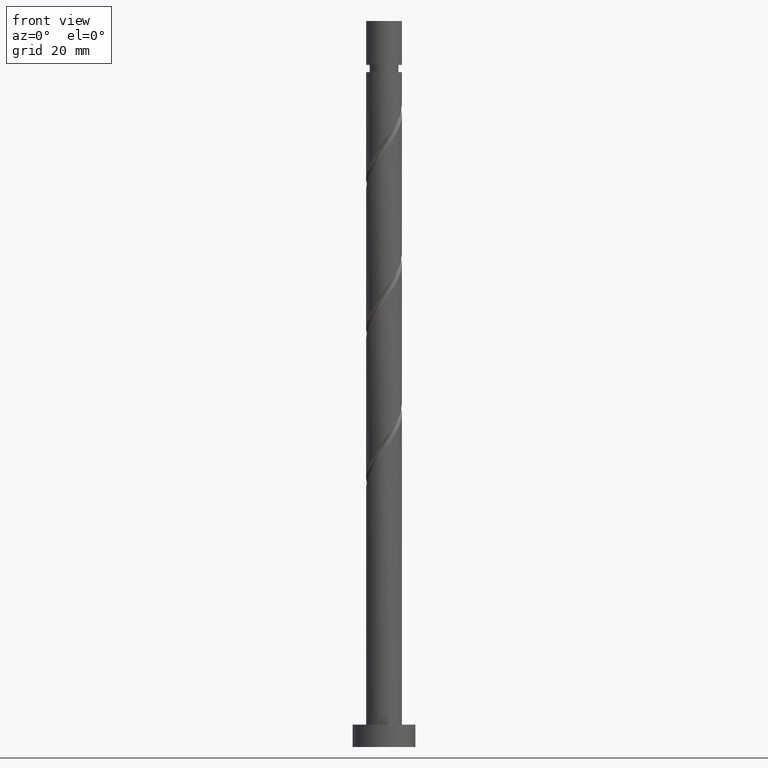
[diagram: clean part render]
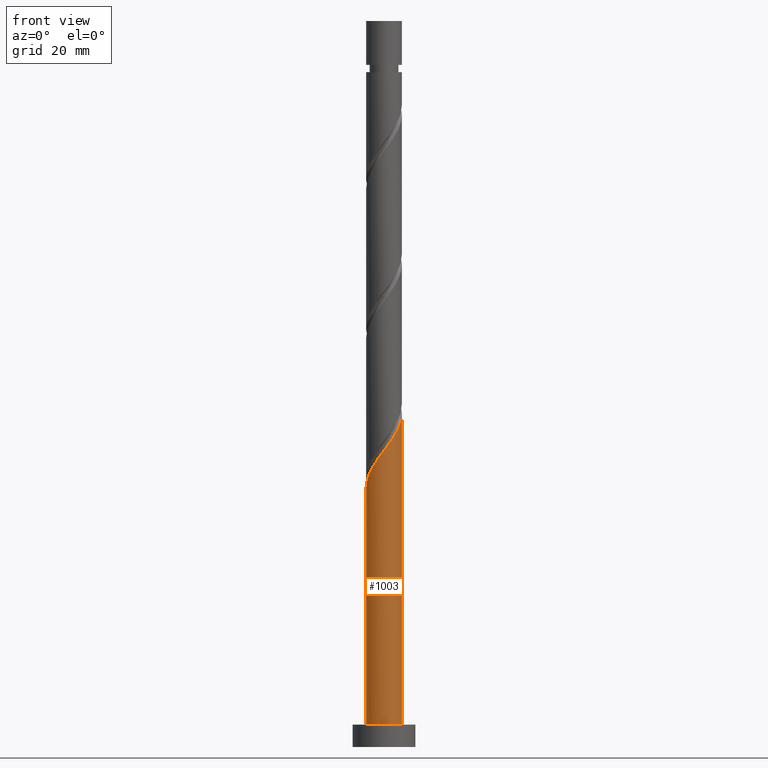
[diagram: same view with one face highlighted and labeled with its STEP entity id]
A machine part, front view. The second image highlights one B-rep face of the part: STEP entity #1003.
In plain terms, the highlighted cylindrical surface (edge-blend (fillet) strip) has radius 4 mm, axis along (-0, -0, -1).
Its self-contained STEP definition (entity closure, byte-faithful):
#7 = EDGE_CURVE ( 'NONE', #641, #1032, #1443, .T. ) ;
#58 = CARTESIAN_POINT ( 'NONE',  ( -4.000000000000005329, -2.243067666543018643E-15, 57.86901170827646723 ) ) ;
#72 = CARTESIAN_POINT ( 'NONE',  ( 0.2799121591427031763, -4.024794064930540927, 66.57146725237544160 ) ) ;
#82 = CARTESIAN_POINT ( 'NONE',  ( 2.254808073111003619, -3.345617825659332745, 69.34924503015321307 ) ) ;
#89 = CARTESIAN_POINT ( 'NONE',  ( -3.580411880364400723, -1.783437906669446793, 60.32146725237542029 ) ) ;
#98 = AXIS2_PLACEMENT_3D ( 'NONE', #494, #905, #1437 ) ;
#113 = CARTESIAN_POINT ( 'NONE',  ( 4.000000000000000000, 4.898587196589412829E-16, 5.000000000000000000 ) ) ;
#122 = EDGE_CURVE ( 'NONE', #361, #1323, #586, .T. ) ;
#147 =( BOUNDED_CURVE ( )  B_SPLINE_CURVE ( 2, ( #58, #485, #1005, #1538, #89, #628, #1167, #1684, #335, #495, #1420, #1017, #600, #72, #1549, #611, #887, #82, #1137, #1438, #216, #1035, #1567, #464, #475, #364, #759 ),
 .UNSPECIFIED., .F., .T. ) 
 B_SPLINE_CURVE_WITH_KNOTS ( ( 3, 2, 2, 2, 2, 2, 2, 2, 2, 2, 2, 2, 2, 3 ),
 ( 0.05453176698144635709, 0.06250000000000000000, 0.07291666666666662966, 0.08333333333333337034, 0.09375000000000000000, 0.1041666666666666297, 0.1145833333333333703, 0.1250000000000000000, 0.1354166666666666297, 0.1458333333333333703, 0.1562500000000000000, 0.1666666666666666297, 0.1770833333333333703, 0.1795317669814463224 ),
 .UNSPECIFIED. ) 
 CURVE ( )  GEOMETRIC_REPRESENTATION_ITEM ( )  RATIONAL_B_SPLINE_CURVE ( ( 0.9062941362546421686, 0.9031415850403463619, 0.9090909090909219392, 0.9013135103398401959, 0.9090909090909219392, 0.9013135103398401959, 0.9090909090909219392, 0.9013135103398401959, 0.9090909090909219392, 0.9013135103398401959, 0.9090909090909219392, 0.9013135103398401959, 0.9090909090909219392, 0.9013135103398401959, 0.9090909090909219392, 0.9013135103398401959, 0.9090909090909219392, 0.9013135103398401959, 0.9090909090909219392, 0.9013135103398401959, 0.9090909090909219392, 0.9013135103398401959, 0.9090909090909219392, 0.9013135103398401959, 0.9090909090909219392, 0.9072628343904156623, 0.9062941362546421686 ) ) 
 REPRESENTATION_ITEM ( '' )  );
#208 = CARTESIAN_POINT ( 'NONE',  ( -4.000000000000000000, 0.000000000000000000, 162.0000000000000000 ) ) ;
#216 = CARTESIAN_POINT ( 'NONE',  ( 3.334708473430081366, -2.209008691072459118, 71.43257836348654166 ) ) ;
#287 = CARTESIAN_POINT ( 'NONE',  ( 0.000000000000000000, 0.000000000000000000, 162.0000000000000000 ) ) ;
#335 = CARTESIAN_POINT ( 'NONE',  ( -2.209008691072457786, -3.334708473430082698, 63.09924503015319885 ) ) ;
#361 = VERTEX_POINT ( 'NONE', #1411 ) ;
#364 = CARTESIAN_POINT ( 'NONE',  ( 4.000000000000005329, -0.1229678066306970491, 74.37251468691496825 ) ) ;
#444 = DIRECTION ( 'NONE',  ( -1.000000000000000000, 0.000000000000000000, 0.000000000000000000 ) ) ;
#452 = CARTESIAN_POINT ( 'NONE',  ( -4.000000000000000000, 0.000000000000000000, 5.000000000000000000 ) ) ;
#464 = CARTESIAN_POINT ( 'NONE',  ( 3.960099130553270896, -0.7713189730113436671, 73.51591169681987026 ) ) ;
#475 = CARTESIAN_POINT ( 'NONE',  ( 3.992446597741905467, -0.2457034069343214111, 74.21035614126431312 ) ) ;
#485 = CARTESIAN_POINT ( 'NONE',  ( -4.000000000000005329, -0.4020151261036869483, 58.40243807746576010 ) ) ;
#494 = CARTESIAN_POINT ( 'NONE',  ( 0.000000000000000000, 0.000000000000000000, 5.000000000000000000 ) ) ;
#495 = CARTESIAN_POINT ( 'NONE',  ( -1.769985991819536642, -3.625529984802036587, 63.79368947459765593 ) ) ;
#544 = CIRCLE ( 'NONE', #98, 4.000000000000000000 ) ;
#586 = LINE ( 'NONE', #1131, #1026 ) ;
#590 = FACE_OUTER_BOUND ( 'NONE', #1571, .T. ) ;
#595 = DIRECTION ( 'NONE',  ( -0.000000000000000000, -0.000000000000000000, -1.000000000000000000 ) ) ;
#600 = CARTESIAN_POINT ( 'NONE',  ( -0.2457034069343194127, -3.992446597741905467, 65.87702280793097032 ) ) ;
#611 = CARTESIAN_POINT ( 'NONE',  ( 1.312067740227889301, -3.815205935069471810, 67.96035614126432733 ) ) ;
#628 = CARTESIAN_POINT ( 'NONE',  ( -3.345617825659332301, -2.254808073111004951, 61.01591169681987026 ) ) ;
#641 = VERTEX_POINT ( 'NONE', #1628 ) ;
#712 = ORIENTED_EDGE ( 'NONE', *, *, #1162, .F. ) ;
#720 = DIRECTION ( 'NONE',  ( -0.000000000000000000, -0.000000000000000000, -1.000000000000000000 ) ) ;
#759 = CARTESIAN_POINT ( 'NONE',  ( 4.000000000000005329, -2.691681199851622530E-16, 74.53567837494314574 ) ) ;
#788 = ORIENTED_EDGE ( 'NONE', *, *, #1630, .T. ) ;
#887 = CARTESIAN_POINT ( 'NONE',  ( 1.783437906669445905, -3.580411880364401611, 68.65480058570877020 ) ) ;
#905 = DIRECTION ( 'NONE',  ( 0.000000000000000000, 0.000000000000000000, 1.000000000000000000 ) ) ;
#1003 = ADVANCED_FACE ( 'NONE', ( #590 ), #1491, .T. ) ;
#1005 = CARTESIAN_POINT ( 'NONE',  ( -3.920000000000005702, -0.7959899496852967937, 58.93257836348652745 ) ) ;
#1017 = CARTESIAN_POINT ( 'NONE',  ( -0.7713189730113420017, -3.960099130553270896, 65.18257836348654166 ) ) ;
#1026 = VECTOR ( 'NONE', #720, 1000.000000000000000 ) ;
#1032 = VERTEX_POINT ( 'NONE', #452 ) ;
#1035 = CARTESIAN_POINT ( 'NONE',  ( 3.625529984802036143, -1.769985991819537530, 72.12702280793098453 ) ) ;
#1118 = DIRECTION ( 'NONE',  ( -0.000000000000000000, -0.000000000000000000, -1.000000000000000000 ) ) ;
#1131 = CARTESIAN_POINT ( 'NONE',  ( 4.000000000000000000, 4.898587196589412829E-16, 162.0000000000000000 ) ) ;
#1137 = CARTESIAN_POINT ( 'NONE',  ( 2.649347517584565104, -2.996824607992356615, 70.04368947459765593 ) ) ;
#1162 = EDGE_CURVE ( 'NONE', #641, #361, #147, .T. ) ;
#1167 = CARTESIAN_POINT ( 'NONE',  ( -2.996824607992356615, -2.649347517584565992, 61.71035614126432023 ) ) ;
#1323 = VERTEX_POINT ( 'NONE', #113 ) ;
#1411 = CARTESIAN_POINT ( 'NONE',  ( 4.000000000000005329, -2.691681199851622530E-16, 74.53567837494314574 ) ) ;
#1420 = CARTESIAN_POINT ( 'NONE',  ( -1.270652482415439710, -3.792814557677651521, 64.48813391904209880 ) ) ;
#1437 = DIRECTION ( 'NONE',  ( 1.000000000000000000, 0.000000000000000000, 0.000000000000000000 ) ) ;
#1438 = CARTESIAN_POINT ( 'NONE',  ( 3.043886962058128809, -2.648031390325382262, 70.73813391904209880 ) ) ;
#1443 = LINE ( 'NONE', #208, #1583 ) ;
#1447 = AXIS2_PLACEMENT_3D ( 'NONE', #287, #1118, #444 ) ;
#1491 = CYLINDRICAL_SURFACE ( 'NONE', #1447, 4.000000000000000000 ) ;
#1538 = CARTESIAN_POINT ( 'NONE',  ( -3.815205935069471810, -1.312067740227889301, 59.62702280793097742 ) ) ;
#1549 = CARTESIAN_POINT ( 'NONE',  ( 0.7959899496852965717, -3.920000000000005702, 67.26591169681987026 ) ) ;
#1567 = CARTESIAN_POINT ( 'NONE',  ( 3.792814557677651521, -1.270652482415440154, 72.82146725237544160 ) ) ;
#1571 = EDGE_LOOP ( 'NONE', ( #1726, #712, #1750, #788 ) ) ;
#1583 = VECTOR ( 'NONE', #595, 1000.000000000000000 ) ;
#1628 = CARTESIAN_POINT ( 'NONE',  ( -4.000000000000005329, -2.243067666543018643E-15, 57.86901170827646723 ) ) ;
#1630 = EDGE_CURVE ( 'NONE', #1032, #1323, #544, .T. ) ;
#1684 = CARTESIAN_POINT ( 'NONE',  ( -2.648031390325382262, -3.043886962058128809, 62.40480058570877020 ) ) ;
#1726 = ORIENTED_EDGE ( 'NONE', *, *, #122, .F. ) ;
#1750 = ORIENTED_EDGE ( 'NONE', *, *, #7, .T. ) ;